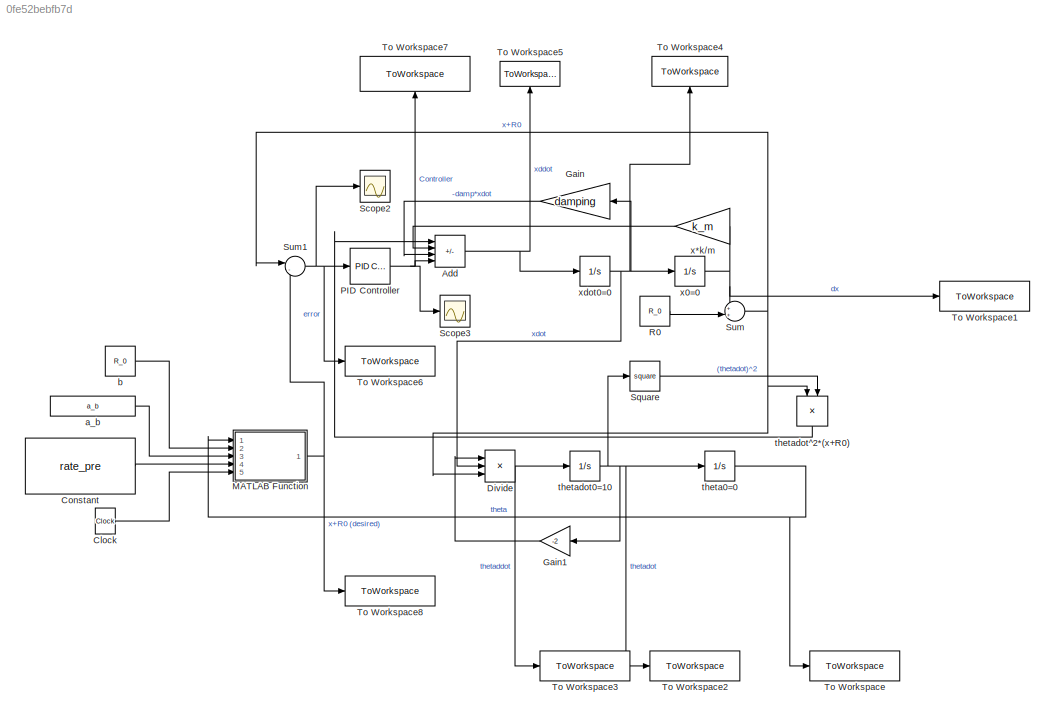
MODEL slx_0fe52bebfb7d
KIND model
CONFIG AbsTol = 1e-3
CONFIG EnableMultiTasking = off
CONFIG FixedStep = auto
CONFIG MaxStep = tstepMax
CONFIG MinStep = tStepMin
CONFIG RelTol = 1e-3
CONFIG SampleTimeConstraint = Unconstrained
CONFIG SolverName = ode45
CONFIG StartTime = 0.0
CONFIG StopTime = tfinal
BLOCK [Sum] Add
  IconShape = rectangular
  Inputs = +--+
  Ports = [4, 1]
BLOCK [Clock] Clock
BLOCK [Constant] Constant
  Value = rate_pre
BLOCK [Product] Divide
  Inputs = **/
  Ports = [3, 1]
BLOCK [Gain] Gain
  Gain = damping
  NameLocation = top
BLOCK [Gain] Gain1
  Gain = -2
  NameLocation = top
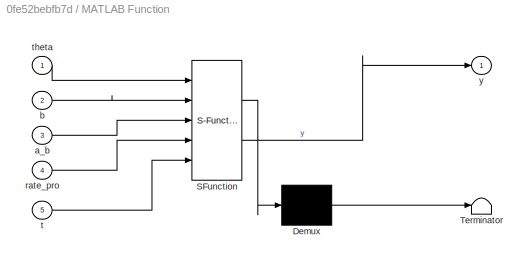
BLOCK [SubSystem] MATLAB Function
  ErrorFcn = Stateflow.Translate.translate
  PermitHierarchicalResolution = ExplicitOnly
  Ports = [5, 1]
  RequestExecContextInheritance = off
  SFBlockType = MATLAB Function
  TreatAsAtomicUnit = on
BLOCK [Demux] MATLAB Function/ Demux 
  Outputs = 1
  Ports = [1, 1]
BLOCK [S-Function] MATLAB Function/ SFunction 
  EnableBusSupport = on
  FunctionName = sf_sfun
  PortCounts = [5 2]
  Ports = [5, 2]
  SFcnIsStateOwnerBlock = off
  SFunctionDeploymentMode = off
  Tag = Stateflow S-Function 2
BLOCK [Terminator] MATLAB Function/ Terminator 
BLOCK [Inport] MATLAB Function/a_b
  Port = 3
BLOCK [Inport] MATLAB Function/b
  Port = 2
BLOCK [Inport] MATLAB Function/rate_pro
  Port = 4
BLOCK [Inport] MATLAB Function/t
  Port = 5
BLOCK [Inport] MATLAB Function/theta
BLOCK [Outport] MATLAB Function/y
  VectorParamsAs1DForOutWhenUnconnected = off
BLOCK [Reference] PID Controller  REF=slpidlib/PID Controller
  Ports = [1, 1]
  SourceBlock = slpidlib/PID Controller
  SourceProductBaseCode = SL
  SourceType = PID 1dof
BLOCK [Constant] R0
  Value = R_0
BLOCK [Scope] Scope2
  Floating = off
  NumInputPorts = 1
  Ports = [1]
  ScopeSpecificationString = Simulink.scopes.TimeScopeBlockCfg('CurrentConfiguration', extmgr.ConfigurationSet(extmgr.Configuration('Core','General UI',true),extmgr.Configuration('Core','Source UI',true),extmgr.Configuration('Sources','WiredSimulink',true,'DataLoggingVariableName','ScopeData1'),extmgr.Configuration('Visuals','Time Domain',true,'SerializedDisplays',{struct('MinYLimReal','-0.40119','MaxYLimReal','0.04458','YLab...<+1364ch>
BLOCK [Scope] Scope3
  Floating = off
  NumInputPorts = 1
  Ports = [1]
  ScopeSpecificationString = Simulink.scopes.TimeScopeBlockCfg('CurrentConfiguration', extmgr.ConfigurationSet(extmgr.Configuration('Core','General UI',true),extmgr.Configuration('Core','Source UI',true),extmgr.Configuration('Sources','WiredSimulink',true,'DataLoggingVariableName','ScopeData1'),extmgr.Configuration('Visuals','Time Domain',true,'SerializedDisplays',{struct('MinYLimReal','-9.05854','MaxYLimReal','7.75127','YLab...<+1369ch>
BLOCK [Math] Square
  Operator = square
  Ports = [1, 1]
BLOCK [Sum] Sum
  Inputs = ++|
  Ports = [2, 1]
BLOCK [Sum] Sum1
  Inputs = |-+
  Ports = [2, 1]
BLOCK [ToWorkspace] To Workspace
  FixptAsFi = on
  MaxDataPoints = inf
  Ports = [1]
  SampleTime = -1
  VariableName = theta
BLOCK [ToWorkspace] To Workspace1
  FixptAsFi = on
  MaxDataPoints = inf
  Ports = [1]
  SampleTime = -1
  VariableName = dx
BLOCK [ToWorkspace] To Workspace2
  FixptAsFi = on
  MaxDataPoints = inf
  Ports = [1]
  SampleTime = -1
  VariableName = thetadot
BLOCK [ToWorkspace] To Workspace3
  FixptAsFi = on
  MaxDataPoints = inf
  Ports = [1]
  SampleTime = -1
  VariableName = thetaddot
BLOCK [ToWorkspace] To Workspace4
  FixptAsFi = on
  MaxDataPoints = inf
  NameLocation = right
  Ports = [1]
  SampleTime = -1
  VariableName = xdot
BLOCK [ToWorkspace] To Workspace5
  FixptAsFi = on
  MaxDataPoints = inf
  NameLocation = right
  Ports = [1]
  SampleTime = -1
  VariableName = xddot
BLOCK [ToWorkspace] To Workspace6
  FixptAsFi = on
  MaxDataPoints = inf
  Ports = [1]
  SampleTime = -1
  VariableName = err
BLOCK [ToWorkspace] To Workspace7
  FixptAsFi = on
  MaxDataPoints = inf
  NameLocation = right
  Ports = [1]
  SampleTime = -1
  VariableName = control
BLOCK [ToWorkspace] To Workspace8
  FixptAsFi = on
  MaxDataPoints = inf
  Ports = [1]
  SampleTime = -1
  VariableName = desired
BLOCK [Constant] a_b
  Value = a_b
BLOCK [Constant] b
  Value = R_0
BLOCK [Integrator] theta0=0
  InitialCondition = theta0
  Ports = [1, 1]
BLOCK [Integrator] thetadot0=10
  InitialCondition = thetadot0
  Ports = [1, 1]
BLOCK [Product] thetadot^2*(x+R0)
  NameLocation = left
  Ports = [2, 1]
BLOCK [Gain] x*k//m
  Gain = k_m
  NameLocation = top
BLOCK [Integrator] x0=0
  InitialCondition = x0
  Ports = [1, 1]
BLOCK [Integrator] xdot0=0
  InitialCondition = xdot0
  Ports = [1, 1]
NET Add:1 -> To Workspace5:1, xdot0=0:1
LINE Clock:1 -> MATLAB Function:5
LINE Constant:1 -> MATLAB Function:4
NET Divide:1 -> To Workspace3:1, thetadot0=10:1
LINE Gain1:1 -> Divide:1
LINE Gain:1 -> Add:3
NET MATLAB Function:1 -> Sum1:2, To Workspace8:1
NET PID Controller:1 -> Add:4, Scope3:1, To Workspace7:1
LINE R0:1 -> Sum:2
LINE Square:1 -> thetadot^2*(x+R0):2
NET Sum1:1 -> PID Controller:1, Scope2:1, To Workspace6:1
NET Sum:1 -> Divide:3, Sum1:1, thetadot^2*(x+R0):1
LINE a_b:1 -> MATLAB Function:3
LINE b:1 -> MATLAB Function:2
NET theta0=0:1 -> MATLAB Function:1, To Workspace:1
NET thetadot0=10:1 -> Gain1:1, Square:1, To Workspace2:1, theta0=0:1
LINE thetadot^2*(x+R0):1 -> Add:1
LINE x*k//m:1 -> Add:2
NET x0=0:1 -> Sum:1, To Workspace1:1, x*k//m:1
NET xdot0=0:1 -> Divide:2, Gain:1, To Workspace4:1, x0=0:1
note: NET lines group one-source signal fan-out (src -> all destinations, sorted); 1:1 wires keep LINE
CHART MATLAB Function states=1 transitions=1
  STATE_LABEL 'eML_blk_kernel()'
  STATE_LABEL 'SCRIPT:\nfunction y = fcn(theta, b, a_b,rate_pro,t)\n\na=b*a_b;\nthetadisp=rate_pro*t;\ny=(a*b)/(sqrt(b^2*sin(theta+thetadisp)^2 + a^2*cos(theta+thetadisp)^2));'
CHART  states=0 transitions=0
